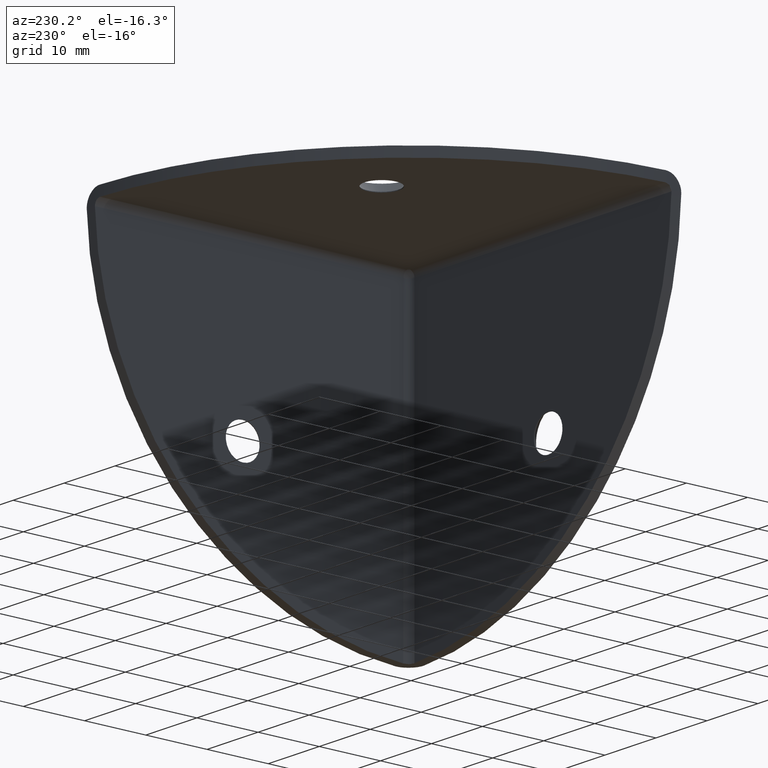
[diagram: clean part render]
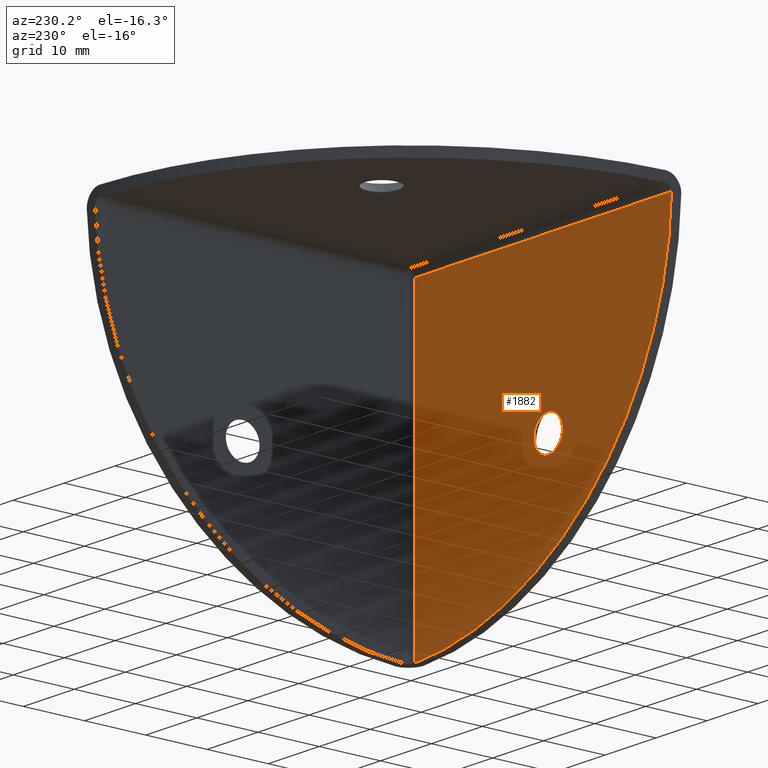
[diagram: same view with one face highlighted and labeled with its STEP entity id]
A machine part, auxiliary view. The second image highlights one B-rep face of the part: STEP entity #1882.
In plain terms, the highlighted face is a freeform B-spline surface patch.
Its self-contained STEP definition (entity closure, byte-faithful):
#955=CARTESIAN_POINT('',(-26.019573326186311,1.600000000000000,24.530495857077440));
#956=VERTEX_POINT('',#955);
#962=CARTESIAN_POINT('',(-28.800000000000001,1.600000000000000,21.399999999999999));
#963=VERTEX_POINT('',#962);
#964=CARTESIAN_POINT('',(-26.019573326186308,1.600000000000000,24.530495857077444));
#965=CARTESIAN_POINT('',(-26.0,1.600000000000000,24.365827535064273));
#966=CARTESIAN_POINT('',(-26.0,1.600000000000000,24.199999999999999));
#967=CARTESIAN_POINT('',(-26.000000000000007,1.600000000000000,21.399999999999991));
#968=CARTESIAN_POINT('',(-28.800000000000001,1.600000000000000,21.399999999999999));
#976=(BOUNDED_CURVE()B_SPLINE_CURVE(2,(#964,#965,#966,#967,#968),.UNSPECIFIED.,.F.,.U.)B_SPLINE_CURVE_WITH_KNOTS((3,2,3),(0.229562473510961,0.250000000000000,0.500000000000000),.UNSPECIFIED.)CURVE()GEOMETRIC_REPRESENTATION_ITEM()RATIONAL_B_SPLINE_CURVE((0.956026754178707,0.976055948328161,1.0,0.707106781186547,1.0))REPRESENTATION_ITEM(''));
#977=EDGE_CURVE('',#956,#963,#976,.T.);
#979=CARTESIAN_POINT('',(-31.594777435576649,1.600000000000000,24.029064089227610));
#980=VERTEX_POINT('',#979);
#981=CARTESIAN_POINT('',(-28.800000000000001,1.600000000000000,21.399999999999999));
#982=CARTESIAN_POINT('',(-31.433976987194722,1.600000000000000,21.399999999999999));
#983=CARTESIAN_POINT('',(-31.594777435576653,1.600000000000000,24.029064089227614));
#991=(BOUNDED_CURVE()B_SPLINE_CURVE(2,(#981,#982,#983),.UNSPECIFIED.,.F.,.U.)B_SPLINE_CURVE_WITH_KNOTS((3,3),(0.500000000000000,0.739332962232734),.UNSPECIFIED.)CURVE()GEOMETRIC_REPRESENTATION_ITEM()RATIONAL_B_SPLINE_CURVE((1.0,0.719603993293984,0.976072041653412))REPRESENTATION_ITEM(''));
#992=EDGE_CURVE('',#963,#980,#991,.T.);
#1026=CARTESIAN_POINT('',(-28.800000000000001,1.600000000000000,27.0));
#1027=VERTEX_POINT('',#1026);
#1028=CARTESIAN_POINT('',(-31.594777435576656,1.600000000000000,24.029064089227607));
#1029=CARTESIAN_POINT('',(-31.599999999999998,1.600000000000000,24.114452262688946));
#1030=CARTESIAN_POINT('',(-31.600000000000001,1.600000000000000,24.199999999999999));
#1031=CARTESIAN_POINT('',(-31.600000000000001,1.600000000000000,27.0));
#1032=CARTESIAN_POINT('',(-28.800000000000001,1.600000000000000,27.0));
#1040=(BOUNDED_CURVE()B_SPLINE_CURVE(2,(#1028,#1029,#1030,#1031,#1032),.UNSPECIFIED.,.F.,.U.)B_SPLINE_CURVE_WITH_KNOTS((3,2,3),(0.739332962232733,0.750000000000000,1.0),.UNSPECIFIED.)CURVE()GEOMETRIC_REPRESENTATION_ITEM()RATIONAL_B_SPLINE_CURVE((0.976072041653410,0.987502787892563,1.0,0.707106781186547,1.0))REPRESENTATION_ITEM(''));
#1041=EDGE_CURVE('',#980,#1027,#1040,.T.);
#1043=CARTESIAN_POINT('',(-28.800000000000001,1.600000000000000,27.0));
#1044=CARTESIAN_POINT('',(-26.313111327405565,1.600000000000000,27.0));
#1045=CARTESIAN_POINT('',(-26.019573326186308,1.600000000000000,24.530495857077444));
#1053=(BOUNDED_CURVE()B_SPLINE_CURVE(2,(#1043,#1044,#1045),.UNSPECIFIED.,.F.,.U.)B_SPLINE_CURVE_WITH_KNOTS((3,3),(0.0,0.229562473510961),.UNSPECIFIED.)CURVE()GEOMETRIC_REPRESENTATION_ITEM()RATIONAL_B_SPLINE_CURVE((1.0,0.731050832858386,0.956026754178707))REPRESENTATION_ITEM(''));
#1054=EDGE_CURVE('',#1027,#956,#1053,.T.);
#1347=CARTESIAN_POINT('',(-2.600000000000000,1.600000000000045,0.021093984072684));
#1348=VERTEX_POINT('',#1347);
#1366=CARTESIAN_POINT('',(-2.600000000000000,1.600000000000000,50.399999999999999));
#1367=VERTEX_POINT('',#1366);
#1368=CARTESIAN_POINT('',(-2.600000000000000,1.600000000000000,50.399999999999999));
#1369=CARTESIAN_POINT('',(-2.600000000000000,1.600000000000045,0.021093984072684));
#1370=QUASI_UNIFORM_CURVE('',1,(#1368,#1369),.UNSPECIFIED.,.F.,.U.);
#1371=EDGE_CURVE('',#1367,#1348,#1370,.T.);
#1508=CARTESIAN_POINT('',(-52.978906015927301,1.600000000000045,50.399999999999999));
#1509=VERTEX_POINT('',#1508);
#1510=CARTESIAN_POINT('',(-52.978906015927301,1.600000000000045,50.399999999999999));
#1511=CARTESIAN_POINT('',(-2.600000000000000,1.600000000000000,50.399999999999999));
#1512=QUASI_UNIFORM_CURVE('',1,(#1510,#1511),.UNSPECIFIED.,.F.,.U.);
#1513=EDGE_CURVE('',#1509,#1367,#1512,.T.);
#1831=CARTESIAN_POINT('',(-52.978906015927308,1.600000000000045,50.399999999999999));
#1832=CARTESIAN_POINT('',(-51.477491846258353,1.600000000000045,1.522508153741643));
#1833=CARTESIAN_POINT('',(-2.600000000000000,1.600000000000045,0.021093984072684));
#1841=(BOUNDED_CURVE()B_SPLINE_CURVE(2,(#1831,#1832,#1833),.UNSPECIFIED.,.F.,.U.)CURVE()GEOMETRIC_REPRESENTATION_ITEM()QUASI_UNIFORM_CURVE()RATIONAL_B_SPLINE_CURVE((1.0,0.728484006415548,1.0))REPRESENTATION_ITEM(''));
#1842=EDGE_CURVE('',#1509,#1348,#1841,.T.);
#1866=CARTESIAN_POINT('',(-55.495330855015403,1.600000000000000,52.916428149535982));
#1867=CARTESIAN_POINT('',(-0.083572458376785,1.600000000000000,52.916428149535982));
#1868=CARTESIAN_POINT('',(-55.495330855015403,1.600000000000000,-2.495333715040767));
#1869=CARTESIAN_POINT('',(-0.083572458376785,1.600000000000000,-2.495333715040767));
#1870=B_SPLINE_SURFACE_WITH_KNOTS('',1,1,((#1866,#1868),(#1867,#1869)),.UNSPECIFIED.,.F.,.F.,.U.,(2,2),(2,2),(0.0,55.411758396638618),(0.0,55.411761864576746),.UNSPECIFIED.);
#1871=ORIENTED_EDGE('',*,*,#1513,.T.);
#1872=ORIENTED_EDGE('',*,*,#1371,.T.);
#1873=ORIENTED_EDGE('',*,*,#1842,.F.);
#1874=EDGE_LOOP('',(#1871,#1872,#1873));
#1875=FACE_OUTER_BOUND('',#1874,.T.);
#1876=ORIENTED_EDGE('',*,*,#992,.F.);
#1877=ORIENTED_EDGE('',*,*,#977,.F.);
#1878=ORIENTED_EDGE('',*,*,#1054,.F.);
#1879=ORIENTED_EDGE('',*,*,#1041,.F.);
#1880=EDGE_LOOP('',(#1876,#1877,#1878,#1879));
#1881=FACE_BOUND('',#1880,.T.);
#1882=ADVANCED_FACE('',(#1875,#1881),#1870,.T.);